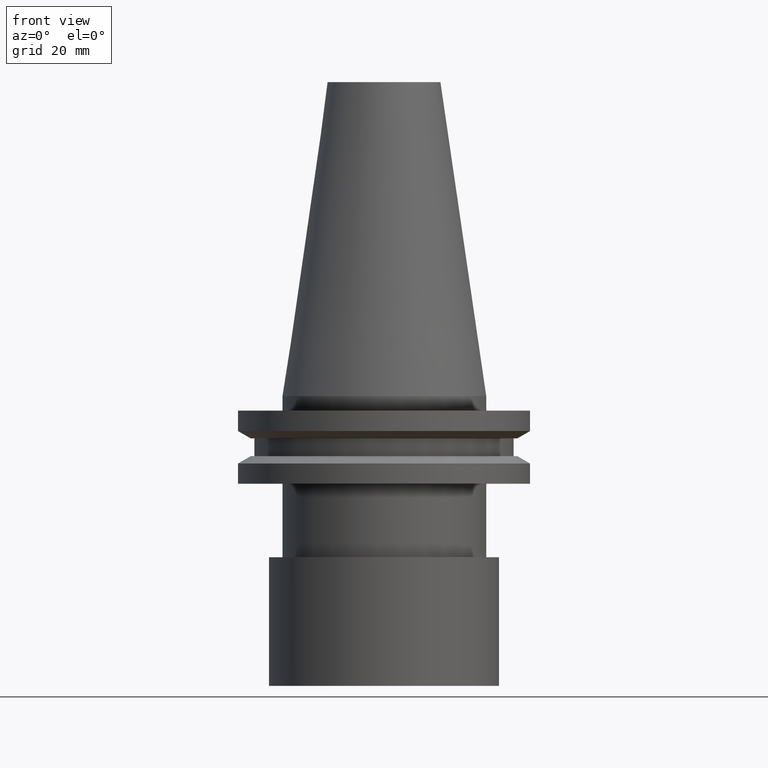
[diagram: clean part render]
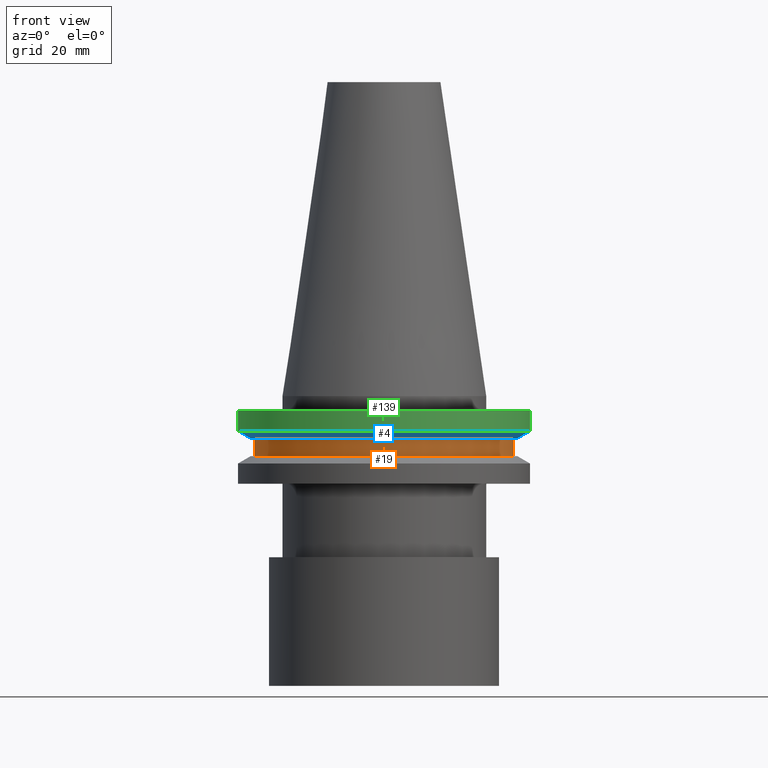
[diagram: same view with three faces highlighted in distinct colors, each labeled with its STEP entity id]
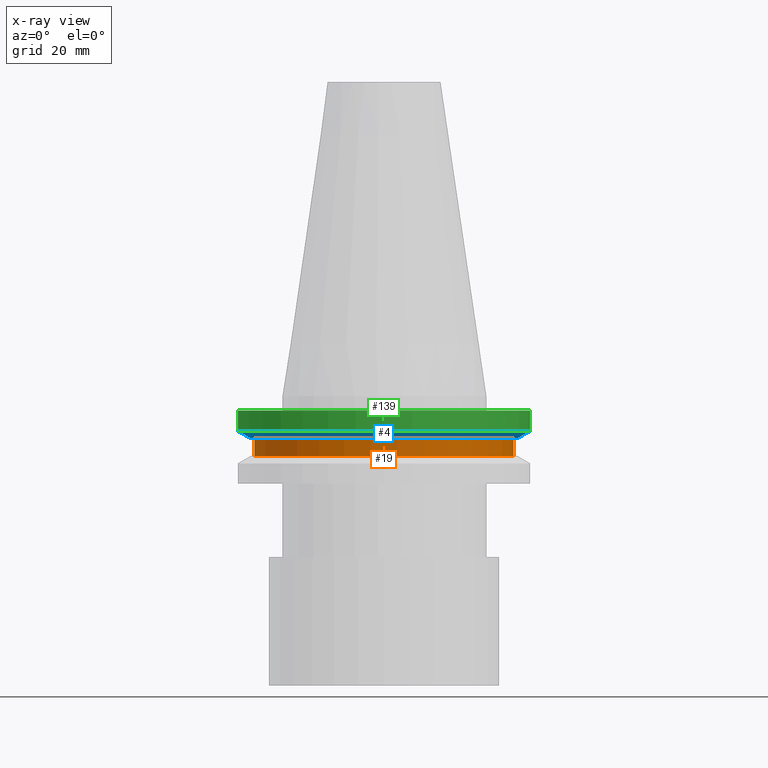
[diagram: x-ray of the same camera — body ghosted, the three highlighted faces saturated]
A machine part, front view with three faces highlighted in distinct colors.
The next image is the same camera in x-ray (body ghosted, the three faces saturated) — at least one of them is partly hidden behind the body in this view.
Their STEP definitions:

[orange] entity #19 — the highlighted cylindrical surface (bore or boss wall) has radius 28.18 mm, axis along (-0, -0, 1).
#14 = AXIS2_PLACEMENT_3D ( 'NONE', #398, #372, #152 ) ;
#18 = DIRECTION ( 'NONE',  ( -0.000000000000000000, -0.000000000000000000, 1.000000000000000000 ) ) ;
#19 = ADVANCED_FACE ( 'NONE', ( #28, #124 ), #35, .T. ) ;
#21 = AXIS2_PLACEMENT_3D ( 'NONE', #215, #157, #193 ) ;
#27 = VERTEX_POINT ( 'NONE', #339 ) ;
#28 = FACE_OUTER_BOUND ( 'NONE', #321, .T. ) ;
#35 = CYLINDRICAL_SURFACE ( 'NONE', #21, 28.17999999999999972 ) ;
#71 = CARTESIAN_POINT ( 'NONE',  ( 28.17999999999999972, 0.000000000000000000, -13.05499999999999794 ) ) ;
#74 = EDGE_LOOP ( 'NONE', ( #112 ) ) ;
#78 = AXIS2_PLACEMENT_3D ( 'NONE', #362, #18, #236 ) ;
#112 = ORIENTED_EDGE ( 'NONE', *, *, #272, .T. ) ;
#124 = FACE_OUTER_BOUND ( 'NONE', #74, .T. ) ;
#152 = DIRECTION ( 'NONE',  ( 1.000000000000000000, 0.000000000000000000, 0.000000000000000000 ) ) ;
#157 = DIRECTION ( 'NONE',  ( -0.000000000000000000, -0.000000000000000000, 1.000000000000000000 ) ) ;
#161 = VERTEX_POINT ( 'NONE', #71 ) ;
#177 = EDGE_CURVE ( 'NONE', #27, #27, #328, .T. ) ;
#193 = DIRECTION ( 'NONE',  ( 1.000000000000000000, 0.000000000000000000, 0.000000000000000000 ) ) ;
#204 = CIRCLE ( 'NONE', #14, 28.17999999999999972 ) ;
#215 = CARTESIAN_POINT ( 'NONE',  ( 0.000000000000000000, 0.000000000000000000, 68.25000000000000000 ) ) ;
#236 = DIRECTION ( 'NONE',  ( 1.000000000000000000, 0.000000000000000000, 0.000000000000000000 ) ) ;
#254 = ORIENTED_EDGE ( 'NONE', *, *, #177, .F. ) ;
#272 = EDGE_CURVE ( 'NONE', #161, #161, #204, .T. ) ;
#321 = EDGE_LOOP ( 'NONE', ( #254 ) ) ;
#328 = CIRCLE ( 'NONE', #78, 28.17999999999999972 ) ;
#339 = CARTESIAN_POINT ( 'NONE',  ( 28.17999999999999972, 0.000000000000000000, -9.204999999999991189 ) ) ;
#362 = CARTESIAN_POINT ( 'NONE',  ( 0.000000000000000000, 0.000000000000000000, -9.204999999999991189 ) ) ;
#372 = DIRECTION ( 'NONE',  ( -0.000000000000000000, -0.000000000000000000, 1.000000000000000000 ) ) ;
#398 = CARTESIAN_POINT ( 'NONE',  ( 0.000000000000000000, 0.000000000000000000, -13.05499999999999794 ) ) ;

[blue] entity #4 — the highlighted conical surface has half-angle 60 deg.
#2 = CARTESIAN_POINT ( 'NONE',  ( 0.000000000000000000, 0.000000000000000000, -9.205000000000005400 ) ) ;
#4 = ADVANCED_FACE ( 'NONE', ( #382, #308 ), #211, .T. ) ;
#8 = DIRECTION ( 'NONE',  ( -0.000000000000000000, -0.000000000000000000, 1.000000000000000000 ) ) ;
#15 = ORIENTED_EDGE ( 'NONE', *, *, #36, .T. ) ;
#22 = CIRCLE ( 'NONE', #127, 28.97919780457007732 ) ;
#36 = EDGE_CURVE ( 'NONE', #241, #241, #22, .T. ) ;
#76 = AXIS2_PLACEMENT_3D ( 'NONE', #2, #373, #226 ) ;
#90 = DIRECTION ( 'NONE',  ( -0.000000000000000000, -0.000000000000000000, 1.000000000000000000 ) ) ;
#127 = AXIS2_PLACEMENT_3D ( 'NONE', #246, #8, #337 ) ;
#135 = VERTEX_POINT ( 'NONE', #259 ) ;
#181 = DIRECTION ( 'NONE',  ( 1.000000000000000000, 0.000000000000000000, 0.000000000000000000 ) ) ;
#196 = EDGE_LOOP ( 'NONE', ( #227 ) ) ;
#211 = CONICAL_SURFACE ( 'NONE', #76, 28.97919780457007732, 1.047197551196598297 ) ;
#212 = CARTESIAN_POINT ( 'NONE',  ( 28.97919780457007732, 0.000000000000000000, -9.205000000000005400 ) ) ;
#218 = CARTESIAN_POINT ( 'NONE',  ( 0.000000000000000000, 0.000000000000000000, -7.605276606597335842 ) ) ;
#226 = DIRECTION ( 'NONE',  ( 1.000000000000000000, 0.000000000000000000, 0.000000000000000000 ) ) ;
#227 = ORIENTED_EDGE ( 'NONE', *, *, #400, .F. ) ;
#241 = VERTEX_POINT ( 'NONE', #212 ) ;
#246 = CARTESIAN_POINT ( 'NONE',  ( 0.000000000000000000, 0.000000000000000000, -9.205000000000005400 ) ) ;
#259 = CARTESIAN_POINT ( 'NONE',  ( 31.75000000000000000, 0.000000000000000000, -7.605276606597335842 ) ) ;
#308 = FACE_BOUND ( 'NONE', #316, .T. ) ;
#316 = EDGE_LOOP ( 'NONE', ( #15 ) ) ;
#329 = AXIS2_PLACEMENT_3D ( 'NONE', #218, #90, #181 ) ;
#337 = DIRECTION ( 'NONE',  ( 1.000000000000000000, 0.000000000000000000, 0.000000000000000000 ) ) ;
#345 = CIRCLE ( 'NONE', #329, 31.75000000000000000 ) ;
#373 = DIRECTION ( 'NONE',  ( -0.000000000000000000, -0.000000000000000000, 1.000000000000000000 ) ) ;
#382 = FACE_OUTER_BOUND ( 'NONE', #196, .T. ) ;
#400 = EDGE_CURVE ( 'NONE', #135, #135, #345, .T. ) ;

[green] entity #139 — the highlighted cylindrical surface (bore or boss wall) has radius 31.75 mm, axis along (-0, -0, 1).
#5 = CARTESIAN_POINT ( 'NONE',  ( 0.000000000000000000, 0.000000000000000000, 68.25000000000000000 ) ) ;
#25 = EDGE_LOOP ( 'NONE', ( #351 ) ) ;
#38 = FACE_OUTER_BOUND ( 'NONE', #190, .T. ) ;
#65 = AXIS2_PLACEMENT_3D ( 'NONE', #275, #303, #341 ) ;
#90 = DIRECTION ( 'NONE',  ( -0.000000000000000000, -0.000000000000000000, 1.000000000000000000 ) ) ;
#102 = ORIENTED_EDGE ( 'NONE', *, *, #400, .T. ) ;
#135 = VERTEX_POINT ( 'NONE', #259 ) ;
#139 = ADVANCED_FACE ( 'NONE', ( #313, #38 ), #282, .T. ) ;
#181 = DIRECTION ( 'NONE',  ( 1.000000000000000000, 0.000000000000000000, 0.000000000000000000 ) ) ;
#190 = EDGE_LOOP ( 'NONE', ( #102 ) ) ;
#218 = CARTESIAN_POINT ( 'NONE',  ( 0.000000000000000000, 0.000000000000000000, -7.605276606597335842 ) ) ;
#252 = DIRECTION ( 'NONE',  ( -0.000000000000000000, -0.000000000000000000, 1.000000000000000000 ) ) ;
#259 = CARTESIAN_POINT ( 'NONE',  ( 31.75000000000000000, 0.000000000000000000, -7.605276606597335842 ) ) ;
#275 = CARTESIAN_POINT ( 'NONE',  ( 0.000000000000000000, 0.000000000000000000, -3.174999999999997158 ) ) ;
#282 = CYLINDRICAL_SURFACE ( 'NONE', #298, 31.75000000000000000 ) ;
#298 = AXIS2_PLACEMENT_3D ( 'NONE', #5, #252, #378 ) ;
#303 = DIRECTION ( 'NONE',  ( -0.000000000000000000, -0.000000000000000000, 1.000000000000000000 ) ) ;
#313 = FACE_OUTER_BOUND ( 'NONE', #25, .T. ) ;
#320 = VERTEX_POINT ( 'NONE', #344 ) ;
#329 = AXIS2_PLACEMENT_3D ( 'NONE', #218, #90, #181 ) ;
#341 = DIRECTION ( 'NONE',  ( 1.000000000000000000, 0.000000000000000000, 0.000000000000000000 ) ) ;
#344 = CARTESIAN_POINT ( 'NONE',  ( 31.75000000000000000, 0.000000000000000000, -3.174999999999997158 ) ) ;
#345 = CIRCLE ( 'NONE', #329, 31.75000000000000000 ) ;
#351 = ORIENTED_EDGE ( 'NONE', *, *, #355, .F. ) ;
#355 = EDGE_CURVE ( 'NONE', #320, #320, #369, .T. ) ;
#369 = CIRCLE ( 'NONE', #65, 31.75000000000000000 ) ;
#378 = DIRECTION ( 'NONE',  ( 1.000000000000000000, 0.000000000000000000, 0.000000000000000000 ) ) ;
#400 = EDGE_CURVE ( 'NONE', #135, #135, #345, .T. ) ;